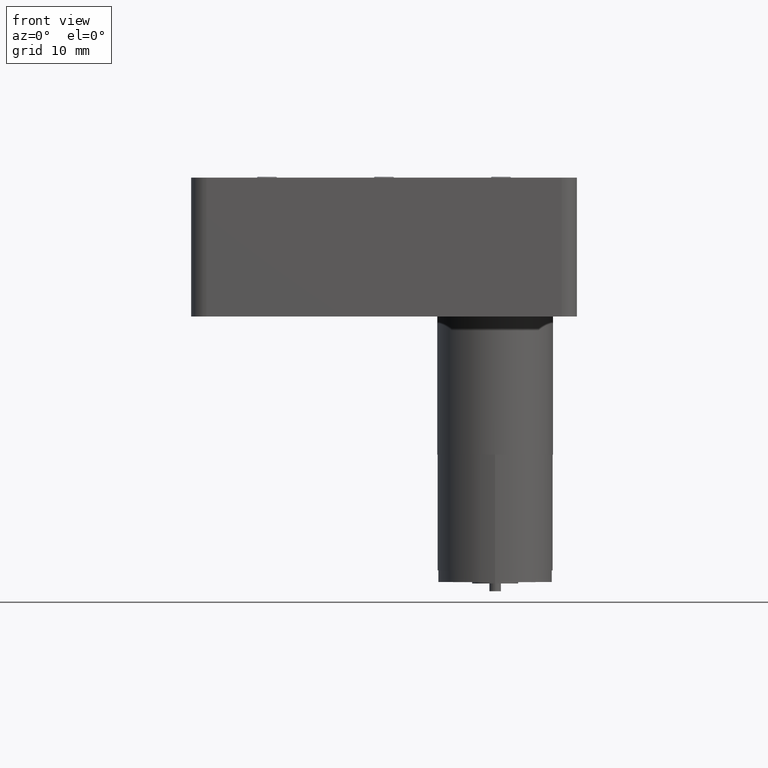
[diagram: clean part render]
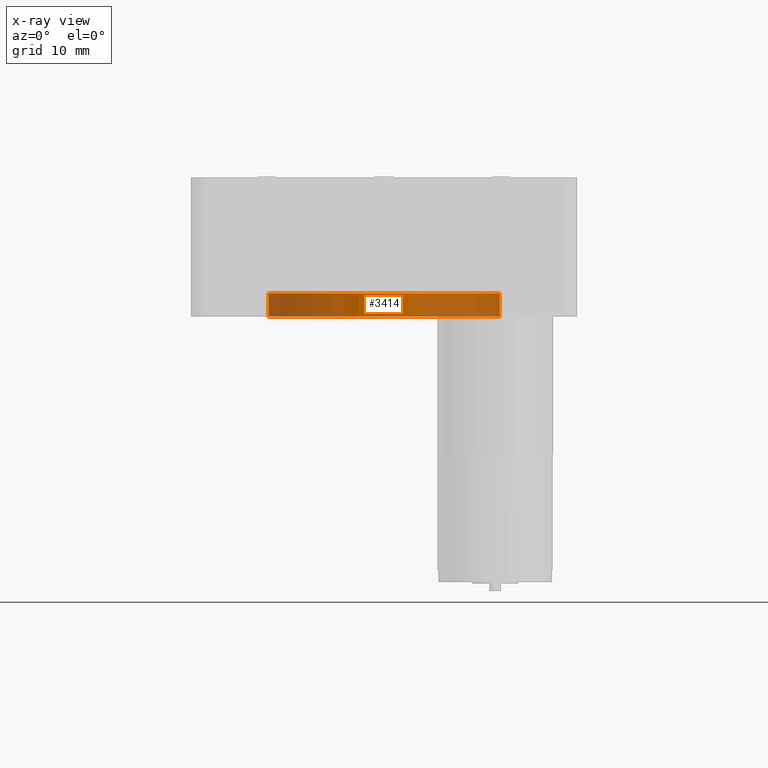
[diagram: x-ray — body ghosted, one internal face saturated and labeled with its STEP entity id]
A machine part, front view, then the same camera in x-ray: the body is ghosted and one INTERNAL B-rep face — a face not visible from any outside direction — is saturated and labeled: STEP entity #3414.
In plain terms, the highlighted cylindrical surface (partial cylindrical patch) has radius 15 mm, axis along (-0, -0, -1).
Its self-contained STEP definition (entity closure, byte-faithful):
#65 = DIRECTION ( 'NONE',  ( 1.000000000000000000, 0.0000000000000000000, 0.0000000000000000000 ) ) ;
#179 = LINE ( 'NONE', #9575, #8534 ) ;
#621 = CARTESIAN_POINT ( 'NONE',  ( 24.99999999999998200, 24.99999999999999600, 0.0000000000000000000 ) ) ;
#1323 = AXIS2_PLACEMENT_3D ( 'NONE', #2193, #1340, #7838 ) ;
#1340 = DIRECTION ( 'NONE',  ( -0.0000000000000000000, -0.0000000000000000000, -1.000000000000000000 ) ) ;
#1417 = DIRECTION ( 'NONE',  ( 1.000000000000000000, 0.0000000000000000000, 0.0000000000000000000 ) ) ;
#2193 = CARTESIAN_POINT ( 'NONE',  ( 24.99999999999998200, 24.99999999999999600, 0.0000000000000000000 ) ) ;
#2408 = VERTEX_POINT ( 'NONE', #9300 ) ;
#2617 = EDGE_CURVE ( 'NONE', #5435, #2408, #3776, .T. ) ;
#2817 = AXIS2_PLACEMENT_3D ( 'NONE', #621, #6268, #1417 ) ;
#3209 = CARTESIAN_POINT ( 'NONE',  ( 39.99999999999997900, 25.00000000000000000, 0.0000000000000000000 ) ) ;
#3414 = ADVANCED_FACE ( 'NONE', ( #8478 ), #7446, .F. ) ;
#3776 = CIRCLE ( 'NONE', #7586, 15.00000000000000000 ) ;
#4110 = VERTEX_POINT ( 'NONE', #9322 ) ;
#4282 = ORIENTED_EDGE ( 'NONE', *, *, #10301, .T. ) ;
#4341 = CARTESIAN_POINT ( 'NONE',  ( 39.99999999999997900, 25.00000000000000000, 0.0000000000000000000 ) ) ;
#4434 = ORIENTED_EDGE ( 'NONE', *, *, #4955, .T. ) ;
#4861 = DIRECTION ( 'NONE',  ( 0.0000000000000000000, 0.0000000000000000000, 1.000000000000000000 ) ) ;
#4955 = EDGE_CURVE ( 'NONE', #4110, #6580, #9551, .T. ) ;
#5312 = ORIENTED_EDGE ( 'NONE', *, *, #10041, .F. ) ;
#5435 = VERTEX_POINT ( 'NONE', #6257 ) ;
#6257 = CARTESIAN_POINT ( 'NONE',  ( 9.999999999999980500, 24.99999999999999600, -3.000000000000000000 ) ) ;
#6268 = DIRECTION ( 'NONE',  ( 0.0000000000000000000, 0.0000000000000000000, 1.000000000000000000 ) ) ;
#6354 = DIRECTION ( 'NONE',  ( -0.0000000000000000000, -0.0000000000000000000, -1.000000000000000000 ) ) ;
#6580 = VERTEX_POINT ( 'NONE', #3209 ) ;
#7301 = EDGE_LOOP ( 'NONE', ( #4434, #4282, #10160, #5312 ) ) ;
#7361 = VECTOR ( 'NONE', #7584, 1000.000000000000000 ) ;
#7446 = CYLINDRICAL_SURFACE ( 'NONE', #1323, 15.00000000000000000 ) ;
#7584 = DIRECTION ( 'NONE',  ( -0.0000000000000000000, -0.0000000000000000000, -1.000000000000000000 ) ) ;
#7586 = AXIS2_PLACEMENT_3D ( 'NONE', #9740, #4861, #65 ) ;
#7838 = DIRECTION ( 'NONE',  ( -1.000000000000000000, 0.0000000000000000000, 0.0000000000000000000 ) ) ;
#8478 = FACE_OUTER_BOUND ( 'NONE', #7301, .T. ) ;
#8534 = VECTOR ( 'NONE', #6354, 1000.000000000000000 ) ;
#9300 = CARTESIAN_POINT ( 'NONE',  ( 39.99999999999997900, 25.00000000000000000, -3.000000000000000000 ) ) ;
#9322 = CARTESIAN_POINT ( 'NONE',  ( 9.999999999999980500, 24.99999999999999600, 0.0000000000000000000 ) ) ;
#9535 = LINE ( 'NONE', #4341, #7361 ) ;
#9551 = CIRCLE ( 'NONE', #2817, 15.00000000000000000 ) ;
#9575 = CARTESIAN_POINT ( 'NONE',  ( 9.999999999999980500, 24.99999999999999600, 0.0000000000000000000 ) ) ;
#9740 = CARTESIAN_POINT ( 'NONE',  ( 24.99999999999998200, 24.99999999999999600, -3.000000000000000000 ) ) ;
#10041 = EDGE_CURVE ( 'NONE', #4110, #5435, #179, .T. ) ;
#10160 = ORIENTED_EDGE ( 'NONE', *, *, #2617, .F. ) ;
#10301 = EDGE_CURVE ( 'NONE', #6580, #2408, #9535, .T. ) ;